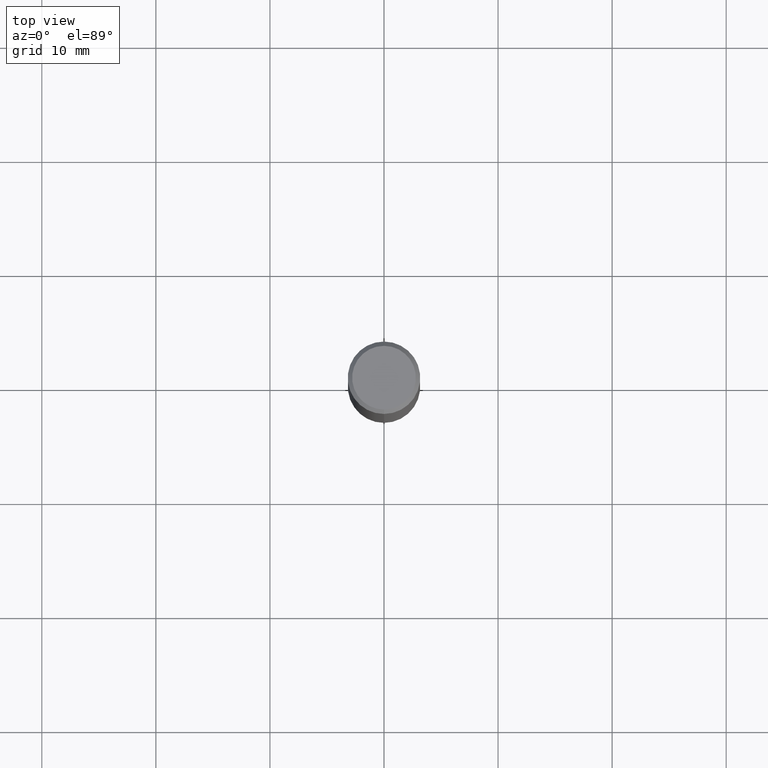
[diagram: clean part render]
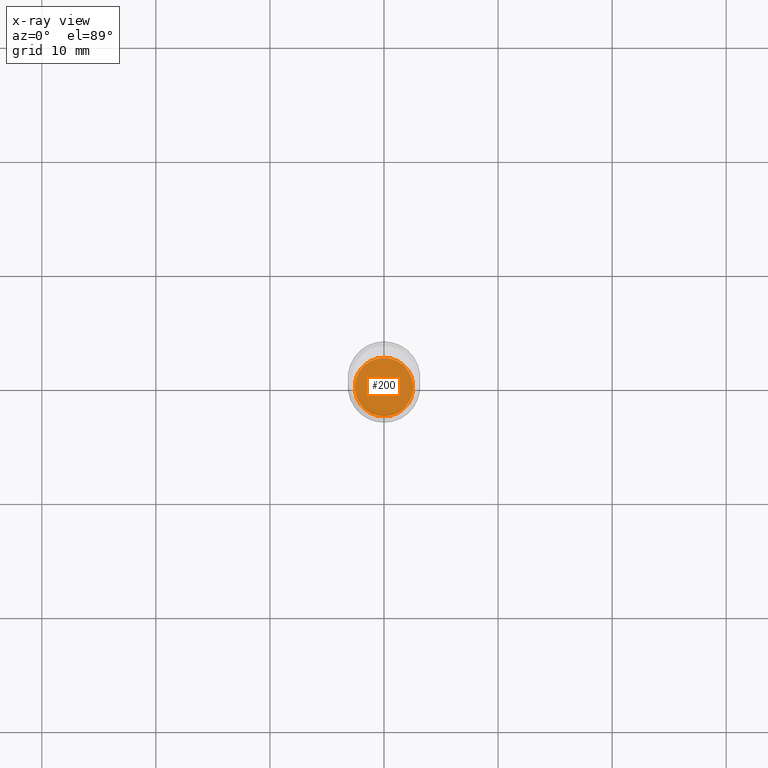
[diagram: x-ray — body ghosted, one internal face saturated and labeled with its STEP entity id]
A machine part, top view, then the same camera in x-ray: the body is ghosted and one INTERNAL B-rep face — a face not visible from any outside direction — is saturated and labeled: STEP entity #200.
In plain terms, the highlighted planar face has unit normal (-0, 0, 1).
Its self-contained STEP definition (entity closure, byte-faithful):
#13 = CARTESIAN_POINT ( 'NONE',  ( -7.056283785801518238E-16, -0.1010500000000066068, -1.874999999999999778 ) ) ;
#57 = DIRECTION ( 'NONE',  ( -2.445484535067431049E-29, 3.491458814188467583E-15, 1.000000000000000000 ) ) ;
#87 = VERTEX_POINT ( 'NONE', #13 ) ;
#127 = ORIENTED_EDGE ( 'NONE', *, *, #207, .F. ) ;
#131 = CARTESIAN_POINT ( 'NONE',  ( 4.585283503251433812E-29, -6.546485276603377605E-15, -1.875000000000000000 ) ) ;
#142 = CARTESIAN_POINT ( 'NONE',  ( 4.585283503251433812E-29, -6.546485276603377605E-15, -1.875000000000000000 ) ) ;
#150 = AXIS2_PLACEMENT_3D ( 'NONE', #448, #419, #307 ) ;
#194 = CIRCLE ( 'NONE', #150, 0.1010500000000000703 ) ;
#195 = CARTESIAN_POINT ( 'NONE',  ( 7.197797913250275462E-16, 0.1010499999999935339, -1.875000000000000444 ) ) ;
#200 = ADVANCED_FACE ( 'NONE', ( #257 ), #442, .F. ) ;
#207 = EDGE_CURVE ( 'NONE', #87, #347, #336, .T. ) ;
#250 = AXIS2_PLACEMENT_3D ( 'NONE', #142, #362, #325 ) ;
#257 = FACE_OUTER_BOUND ( 'NONE', #487, .T. ) ;
#288 = DIRECTION ( 'NONE',  ( -6.982962677686265922E-15, -1.000000000000000000, 2.703461646377299523E-15 ) ) ;
#307 = DIRECTION ( 'NONE',  ( -6.982962677686265922E-15, -1.000000000000000000, 2.703461646377299523E-15 ) ) ;
#325 = DIRECTION ( 'NONE',  ( -6.982962677686265922E-15, -1.000000000000000000, 3.491458814188467188E-15 ) ) ;
#336 = CIRCLE ( 'NONE', #401, 0.1010500000000000703 ) ;
#347 = VERTEX_POINT ( 'NONE', #195 ) ;
#362 = DIRECTION ( 'NONE',  ( -2.445484535067431049E-29, 3.491458814188467188E-15, 1.000000000000000000 ) ) ;
#394 = ORIENTED_EDGE ( 'NONE', *, *, #481, .F. ) ;
#401 = AXIS2_PLACEMENT_3D ( 'NONE', #131, #57, #288 ) ;
#419 = DIRECTION ( 'NONE',  ( -2.445484535067431049E-29, 3.491458814188467583E-15, 1.000000000000000000 ) ) ;
#442 = PLANE ( 'NONE',  #250 ) ;
#448 = CARTESIAN_POINT ( 'NONE',  ( 4.585283503251433812E-29, -6.546485276603377605E-15, -1.875000000000000000 ) ) ;
#481 = EDGE_CURVE ( 'NONE', #347, #87, #194, .T. ) ;
#487 = EDGE_LOOP ( 'NONE', ( #127, #394 ) ) ;